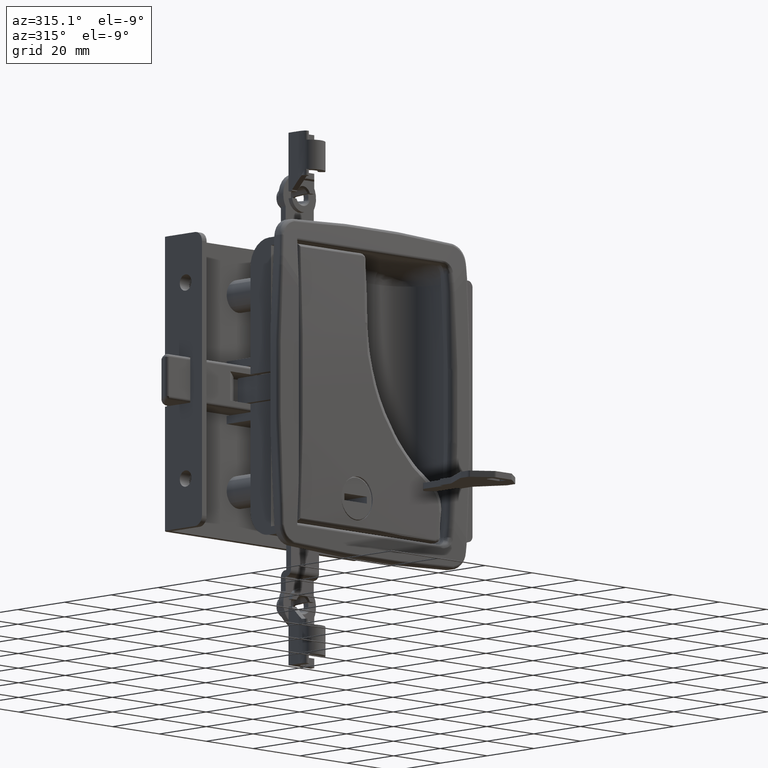
[diagram: clean part render]
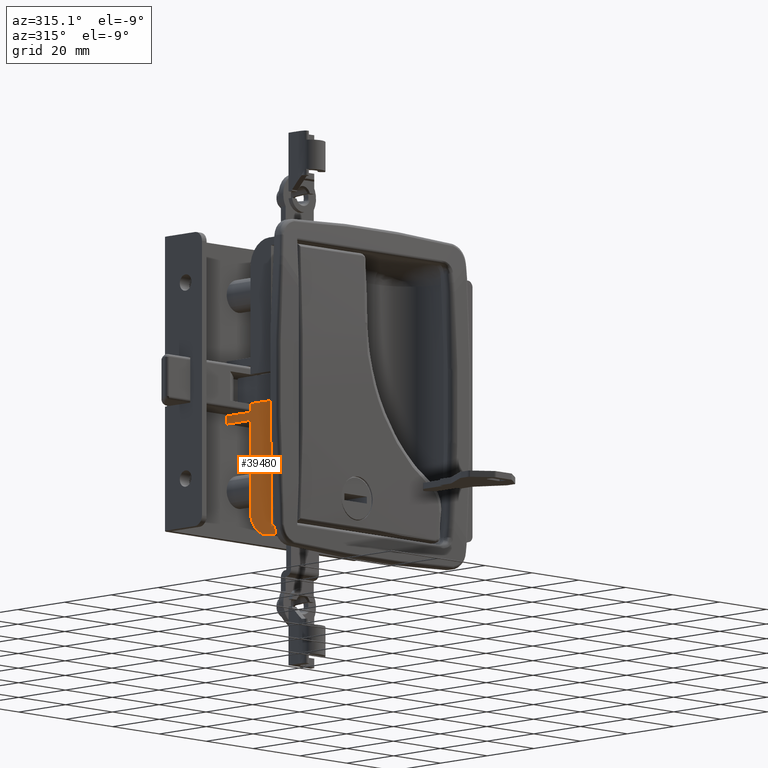
[diagram: same view with one face highlighted and labeled with its STEP entity id]
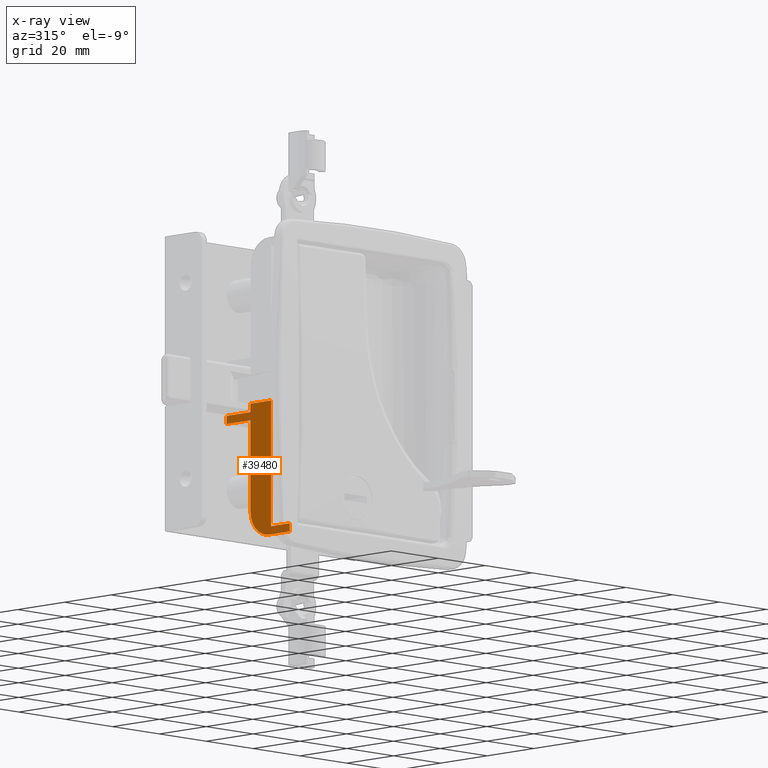
[diagram: x-ray of the same camera — body ghosted, the highlighted face saturated]
A machine part, auxiliary view. The second image highlights one B-rep face of the part: STEP entity #39480.
The next image is the same camera in x-ray: the body ghosted, the highlighted face saturated — about 0% of this face is hidden behind the body in this view.
In plain terms, the highlighted face is a freeform B-spline surface patch.
Its self-contained STEP definition (entity closure, byte-faithful):
#32395=CARTESIAN_POINT('',(-33.0,-12.199999999999999,-30.0));
#32396=VERTEX_POINT('',#32395);
#33507=CARTESIAN_POINT('',(-33.0,-12.199999999999999,-37.499699999999997));
#33508=VERTEX_POINT('',#33507);
#33514=CARTESIAN_POINT('',(-33.0,-12.199999999999999,-37.499699999999997));
#33515=CARTESIAN_POINT('',(-33.0,-12.199999999999999,-30.0));
#33516=QUASI_UNIFORM_CURVE('',1,(#33514,#33515),.UNSPECIFIED.,.F.,.U.);
#33517=EDGE_CURVE('',#33508,#32396,#33516,.T.);
#33525=CARTESIAN_POINT('',(-33.0,-12.199999999999999,-9.600000000000000));
#33526=VERTEX_POINT('',#33525);
#33527=CARTESIAN_POINT('',(-33.0,-12.199999999999999,-30.0));
#33528=CARTESIAN_POINT('',(-33.0,-12.199999999999999,-9.600000000000000));
#33529=QUASI_UNIFORM_CURVE('',1,(#33527,#33528),.UNSPECIFIED.,.F.,.U.);
#33530=EDGE_CURVE('',#32396,#33526,#33529,.T.);
#37981=CARTESIAN_POINT('',(-33.0,-21.0,-4.500000000000000));
#37982=VERTEX_POINT('',#37981);
#37983=CARTESIAN_POINT('',(-33.0,-12.199999999999999,-4.500000000000000));
#37984=VERTEX_POINT('',#37983);
#37985=CARTESIAN_POINT('',(-33.0,-21.0,-4.500000000000000));
#37986=CARTESIAN_POINT('',(-33.0,-12.199999999999999,-4.500000000000000));
#37987=QUASI_UNIFORM_CURVE('',1,(#37985,#37986),.UNSPECIFIED.,.F.,.U.);
#37988=EDGE_CURVE('',#37982,#37984,#37987,.T.);
#38289=CARTESIAN_POINT('',(-33.0,-2.0,-9.600000000000000));
#38290=VERTEX_POINT('',#38289);
#38296=CARTESIAN_POINT('',(-33.0,-2.0,-7.100000000000001));
#38297=VERTEX_POINT('',#38296);
#38298=CARTESIAN_POINT('',(-33.0,-2.0,-9.600000000000000));
#38299=CARTESIAN_POINT('',(-33.0,-2.0,-7.100000000000001));
#38300=QUASI_UNIFORM_CURVE('',1,(#38298,#38299),.UNSPECIFIED.,.F.,.U.);
#38301=EDGE_CURVE('',#38290,#38297,#38300,.T.);
#38324=CARTESIAN_POINT('',(-33.0,-12.199999999999999,-7.100000000000001));
#38325=VERTEX_POINT('',#38324);
#38326=CARTESIAN_POINT('',(-33.0,-12.199999999999999,-7.100000000000001));
#38327=CARTESIAN_POINT('',(-33.0,-2.0,-7.100000000000001));
#38328=QUASI_UNIFORM_CURVE('',1,(#38326,#38327),.UNSPECIFIED.,.F.,.U.);
#38329=EDGE_CURVE('',#38325,#38297,#38328,.T.);
#38357=CARTESIAN_POINT('',(-33.0,-12.199999999999999,-9.600000000000000));
#38358=CARTESIAN_POINT('',(-33.0,-2.0,-9.600000000000000));
#38359=QUASI_UNIFORM_CURVE('',1,(#38357,#38358),.UNSPECIFIED.,.F.,.U.);
#38360=EDGE_CURVE('',#33526,#38290,#38359,.T.);
#38849=CARTESIAN_POINT('',(-33.0,-21.0,-42.999699999999997));
#38850=VERTEX_POINT('',#38849);
#38851=CARTESIAN_POINT('',(-33.0,-21.0,-42.999699999999997));
#38852=CARTESIAN_POINT('',(-33.0,-21.0,-4.500000000000000));
#38853=QUASI_UNIFORM_CURVE('',1,(#38851,#38852),.UNSPECIFIED.,.F.,.U.);
#38854=EDGE_CURVE('',#38850,#37982,#38853,.T.);
#38869=CARTESIAN_POINT('',(-33.0,-29.0,-42.999699999999997));
#38870=VERTEX_POINT('',#38869);
#38885=CARTESIAN_POINT('',(-33.0,-21.0,-42.999699999999997));
#38886=CARTESIAN_POINT('',(-33.0,-29.0,-42.999699999999997));
#38887=QUASI_UNIFORM_CURVE('',1,(#38885,#38886),.UNSPECIFIED.,.F.,.U.);
#38888=EDGE_CURVE('',#38850,#38870,#38887,.T.);
#39268=CARTESIAN_POINT('',(-33.0,-29.0,-45.499699999999997));
#39269=VERTEX_POINT('',#39268);
#39301=CARTESIAN_POINT('',(-33.0,-29.0,-45.499699999999997));
#39302=CARTESIAN_POINT('',(-33.0,-29.0,-42.999699999999997));
#39303=QUASI_UNIFORM_CURVE('',1,(#39301,#39302),.UNSPECIFIED.,.F.,.U.);
#39304=EDGE_CURVE('',#39269,#38870,#39303,.T.);
#39438=CARTESIAN_POINT('',(-33.0,-30.348649947668761,-2.452065210945101));
#39439=CARTESIAN_POINT('',(-33.0,-30.348649947668761,-47.547632956225492));
#39440=CARTESIAN_POINT('',(-33.0,-0.651349328134806,-2.452065210945102));
#39441=CARTESIAN_POINT('',(-33.0,-0.651349328134806,-47.547632956225492));
#39442=B_SPLINE_SURFACE_WITH_KNOTS('',1,1,((#39438,#39440),(#39439,#39441)),.UNSPECIFIED.,.F.,.F.,.U.,(2,2),(2,2),(0.0,45.095567745280391),(0.0,29.697300619533959),.UNSPECIFIED.);
#39443=ORIENTED_EDGE('',*,*,#33517,.F.);
#39444=CARTESIAN_POINT('',(-33.0,-20.199999999999999,-45.499699999999997));
#39445=VERTEX_POINT('',#39444);
#39446=CARTESIAN_POINT('',(-33.0,-12.199999999999999,-37.499699999999997));
#39447=CARTESIAN_POINT('',(-32.999999999999972,-12.199630888912431,-38.285142798842116));
#39448=CARTESIAN_POINT('',(-33.000000000000057,-12.374966423718011,-39.463007994583947));
#39449=CARTESIAN_POINT('',(-32.999999999999893,-13.048082079342080,-41.208148893974247));
#39450=CARTESIAN_POINT('',(-33.000000000000121,-13.814448172528440,-42.402185628419303));
#39451=CARTESIAN_POINT('',(-32.999999999999929,-14.854543147227110,-43.494394751692020));
#39452=CARTESIAN_POINT('',(-33.000000000000057,-15.843697054457371,-44.256682656921527));
#39453=CARTESIAN_POINT('',(-32.999999999999957,-17.150843094541010,-44.945107773786283));
#39454=CARTESIAN_POINT('',(-32.999999999999979,-18.596494096620312,-45.393341600220289));
#39455=CARTESIAN_POINT('',(-33.000000000000213,-19.676409651767351,-45.499759880581763));
#39456=CARTESIAN_POINT('',(-33.0,-20.199999999999999,-45.499699999999997));
#39457=B_SPLINE_CURVE_WITH_KNOTS('',3,(#39446,#39447,#39448,#39449,#39450,#39451,#39452,#39453,#39454,#39455,#39456),.UNSPECIFIED.,.F.,.U.,(4,1,1,1,1,1,1,1,4),(0.000000141668476,2.356193978786253,3.534321700543755,5.596015831224952,6.577731485226086,8.050356008237372,9.326662918613295,10.995673149425190,12.566449463008720),.UNSPECIFIED.);
#39458=EDGE_CURVE('',#33508,#39445,#39457,.T.);
#39459=ORIENTED_EDGE('',*,*,#39458,.T.);
#39460=CARTESIAN_POINT('',(-33.0,-29.0,-45.499699999999997));
#39461=CARTESIAN_POINT('',(-33.0,-20.199999999999999,-45.499699999999997));
#39462=QUASI_UNIFORM_CURVE('',1,(#39460,#39461),.UNSPECIFIED.,.F.,.U.);
#39463=EDGE_CURVE('',#39269,#39445,#39462,.T.);
#39464=ORIENTED_EDGE('',*,*,#39463,.F.);
#39465=ORIENTED_EDGE('',*,*,#39304,.T.);
#39466=ORIENTED_EDGE('',*,*,#38888,.F.);
#39467=ORIENTED_EDGE('',*,*,#38854,.T.);
#39468=ORIENTED_EDGE('',*,*,#37988,.T.);
#39469=CARTESIAN_POINT('',(-33.0,-12.199999999999999,-7.100000000000001));
#39470=CARTESIAN_POINT('',(-33.0,-12.199999999999999,-4.500000000000000));
#39471=QUASI_UNIFORM_CURVE('',1,(#39469,#39470),.UNSPECIFIED.,.F.,.U.);
#39472=EDGE_CURVE('',#38325,#37984,#39471,.T.);
#39473=ORIENTED_EDGE('',*,*,#39472,.F.);
#39474=ORIENTED_EDGE('',*,*,#38329,.T.);
#39475=ORIENTED_EDGE('',*,*,#38301,.F.);
#39476=ORIENTED_EDGE('',*,*,#38360,.F.);
#39477=ORIENTED_EDGE('',*,*,#33530,.F.);
#39478=EDGE_LOOP('',(#39443,#39459,#39464,#39465,#39466,#39467,#39468,#39473,#39474,#39475,#39476,#39477));
#39479=FACE_OUTER_BOUND('',#39478,.T.);
#39480=ADVANCED_FACE('',(#39479),#39442,.F.);